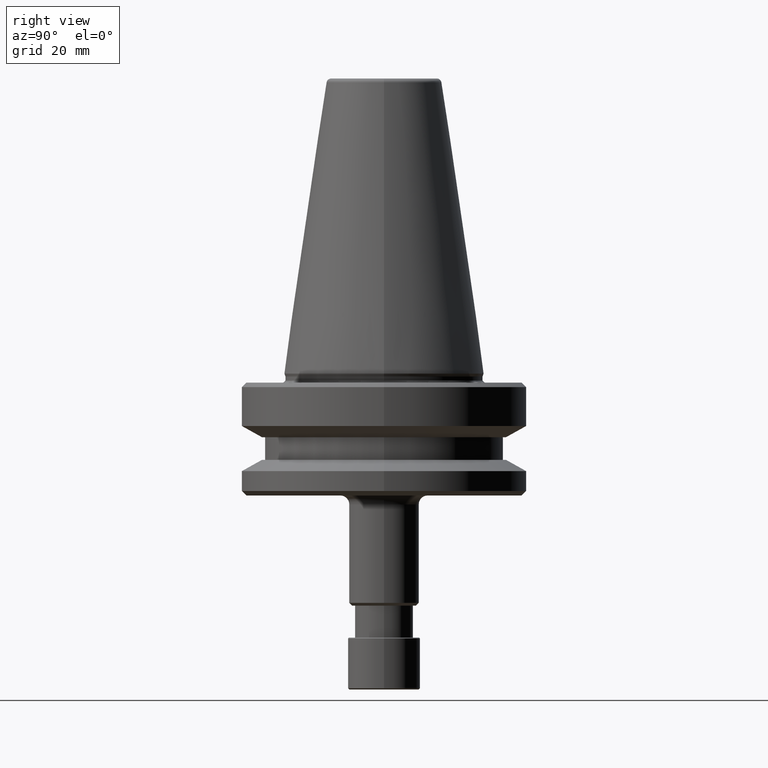
[diagram: clean part render]
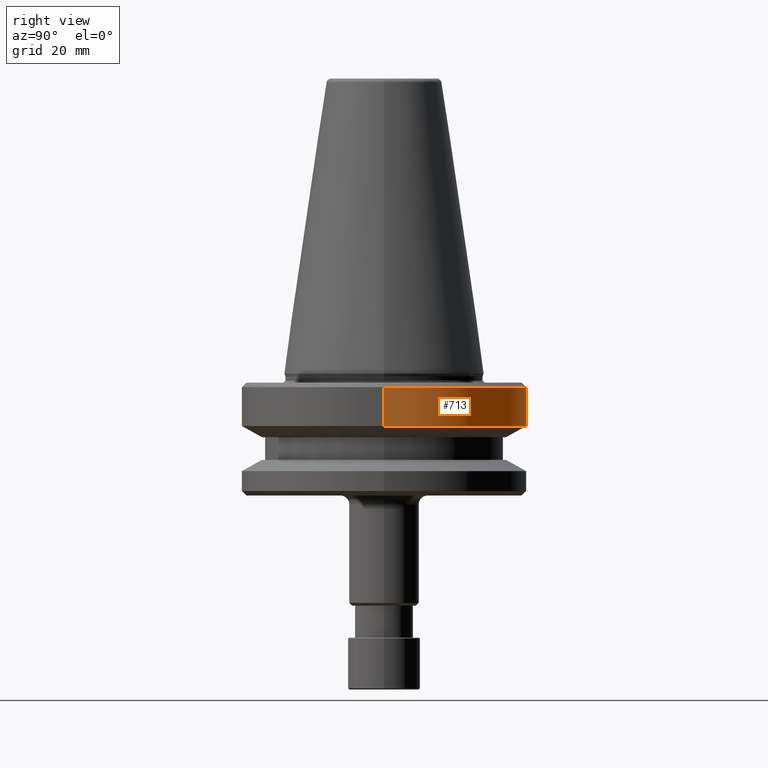
[diagram: same view with one face highlighted and labeled with its STEP entity id]
A machine part, right view. The second image highlights one B-rep face of the part: STEP entity #713.
In plain terms, the highlighted cylindrical surface (partial cylindrical patch) has radius 31.5 mm, axis along (-0, -0, 1).
Its self-contained STEP definition (entity closure, byte-faithful):
#132 = CARTESIAN_POINT ( 'NONE',  ( 0.0000000000000000000, 0.0000000000000000000, 96.45202497769851400 ) ) ;
#149 = DIRECTION ( 'NONE',  ( -0.0000000000000000000, -0.0000000000000000000, 1.000000000000000000 ) ) ;
#157 = VECTOR ( 'NONE', #962, 1000.000000000000000 ) ;
#174 = CARTESIAN_POINT ( 'NONE',  ( 31.50000000000008500, 0.0000000000000000000, -3.000000000000335700 ) ) ;
#202 = LINE ( 'NONE', #261, #157 ) ;
#222 = DIRECTION ( 'NONE',  ( -0.0000000000000000000, -0.0000000000000000000, 1.000000000000000000 ) ) ;
#226 = AXIS2_PLACEMENT_3D ( 'NONE', #835, #222, #925 ) ;
#261 = CARTESIAN_POINT ( 'NONE',  ( 31.50000000000008500, 0.0000000000000000000, 96.45202497769851400 ) ) ;
#314 = EDGE_LOOP ( 'NONE', ( #861, #1108, #559, #743 ) ) ;
#328 = VERTEX_POINT ( 'NONE', #392 ) ;
#339 = LINE ( 'NONE', #351, #1019 ) ;
#351 = CARTESIAN_POINT ( 'NONE',  ( -31.50000000000008500, 3.857637417314172900E-015, 96.45202497769851400 ) ) ;
#386 = DIRECTION ( 'NONE',  ( 1.000000000000000000, 0.0000000000000000000, 0.0000000000000000000 ) ) ;
#392 = CARTESIAN_POINT ( 'NONE',  ( -31.50000000000008500, 3.857637417314172900E-015, -3.000000000000335700 ) ) ;
#397 = CARTESIAN_POINT ( 'NONE',  ( -31.50000000000008500, 3.857637417314172900E-015, -11.59985799368334900 ) ) ;
#414 = CARTESIAN_POINT ( 'NONE',  ( 0.0000000000000000000, 0.0000000000000000000, -3.000000000000335700 ) ) ;
#459 = EDGE_CURVE ( 'NONE', #701, #775, #1233, .T. ) ;
#489 = EDGE_CURVE ( 'NONE', #701, #1044, #202, .T. ) ;
#511 = DIRECTION ( 'NONE',  ( 1.000000000000000000, 0.0000000000000000000, 0.0000000000000000000 ) ) ;
#518 = CIRCLE ( 'NONE', #999, 31.50000000000008500 ) ;
#559 = ORIENTED_EDGE ( 'NONE', *, *, #1151, .F. ) ;
#701 = VERTEX_POINT ( 'NONE', #1048 ) ;
#713 = ADVANCED_FACE ( 'NONE', ( #912 ), #821, .T. ) ;
#743 = ORIENTED_EDGE ( 'NONE', *, *, #489, .F. ) ;
#775 = VERTEX_POINT ( 'NONE', #397 ) ;
#821 = CYLINDRICAL_SURFACE ( 'NONE', #1211, 31.50000000000008500 ) ;
#835 = CARTESIAN_POINT ( 'NONE',  ( 0.0000000000000000000, 0.0000000000000000000, -11.59985799368334900 ) ) ;
#844 = EDGE_CURVE ( 'NONE', #775, #328, #339, .T. ) ;
#861 = ORIENTED_EDGE ( 'NONE', *, *, #459, .T. ) ;
#912 = FACE_OUTER_BOUND ( 'NONE', #314, .T. ) ;
#925 = DIRECTION ( 'NONE',  ( 1.000000000000000000, 0.0000000000000000000, 0.0000000000000000000 ) ) ;
#962 = DIRECTION ( 'NONE',  ( -0.0000000000000000000, -0.0000000000000000000, 1.000000000000000000 ) ) ;
#999 = AXIS2_PLACEMENT_3D ( 'NONE', #414, #1120, #511 ) ;
#1019 = VECTOR ( 'NONE', #149, 1000.000000000000000 ) ;
#1044 = VERTEX_POINT ( 'NONE', #174 ) ;
#1048 = CARTESIAN_POINT ( 'NONE',  ( 31.50000000000008500, 0.0000000000000000000, -11.59985799368334900 ) ) ;
#1053 = DIRECTION ( 'NONE',  ( -0.0000000000000000000, -0.0000000000000000000, 1.000000000000000000 ) ) ;
#1108 = ORIENTED_EDGE ( 'NONE', *, *, #844, .T. ) ;
#1120 = DIRECTION ( 'NONE',  ( -0.0000000000000000000, -0.0000000000000000000, 1.000000000000000000 ) ) ;
#1151 = EDGE_CURVE ( 'NONE', #1044, #328, #518, .T. ) ;
#1211 = AXIS2_PLACEMENT_3D ( 'NONE', #132, #1053, #386 ) ;
#1233 = CIRCLE ( 'NONE', #226, 31.50000000000008500 ) ;